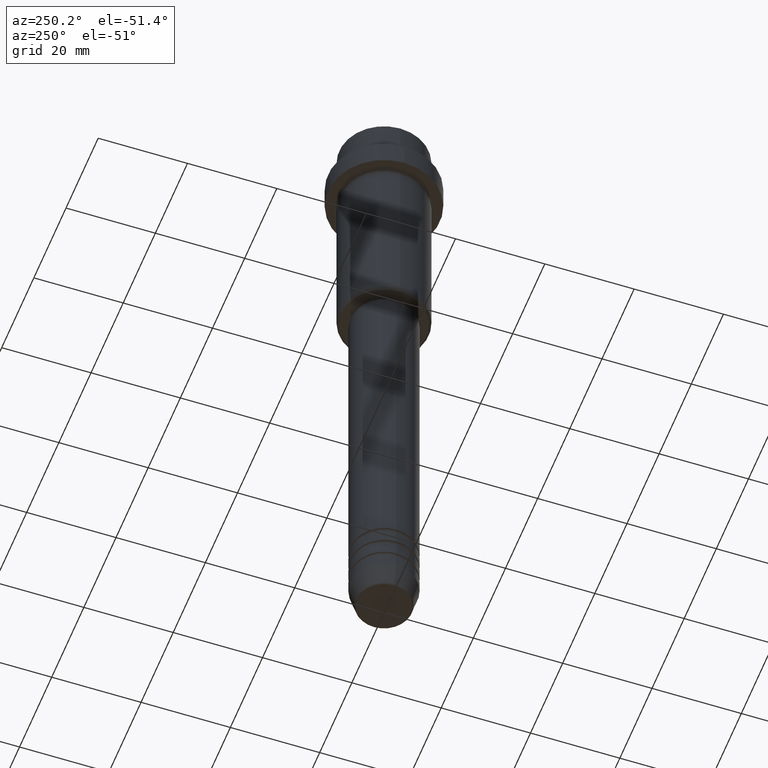
[diagram: clean part render]
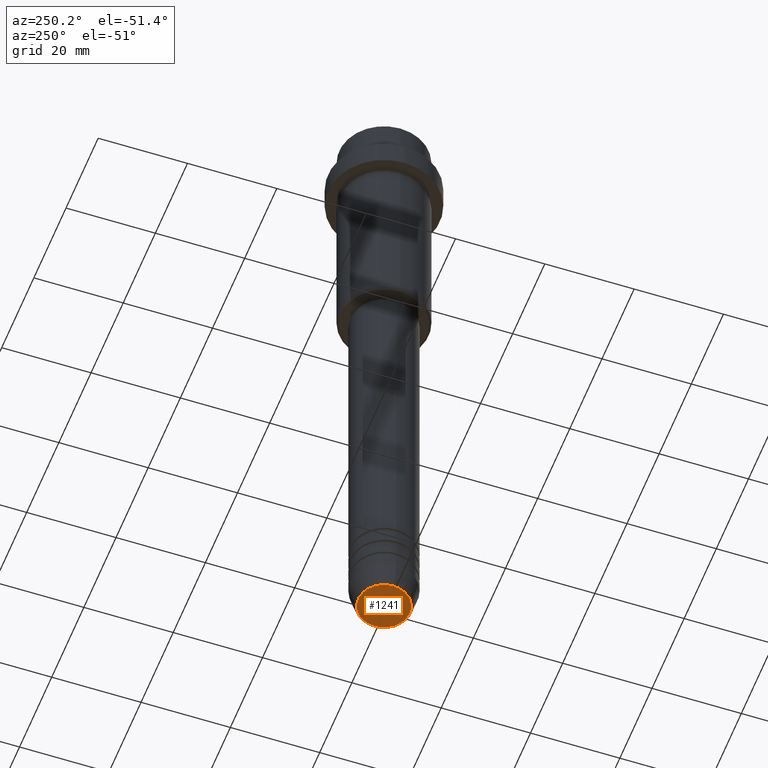
[diagram: same view with one face highlighted and labeled with its STEP entity id]
A machine part, auxiliary view. The second image highlights one B-rep face of the part: STEP entity #1241.
In plain terms, the highlighted planar face has unit normal (0, -0, 1).
Its self-contained STEP definition (entity closure, byte-faithful):
#65 = CARTESIAN_POINT ( 'NONE',  ( -5.776590543854905668, 7.370012612361443628E-16, -149.9999999999999716 ) ) ;
#86 = AXIS2_PLACEMENT_3D ( 'NONE', #1328, #348, #783 ) ;
#337 = DIRECTION ( 'NONE',  ( 1.000000000000000000, 0.000000000000000000, 0.000000000000000000 ) ) ;
#348 = DIRECTION ( 'NONE',  ( 0.000000000000000000, -0.000000000000000000, 1.000000000000000000 ) ) ;
#385 = EDGE_CURVE ( 'NONE', #877, #998, #628, .T. ) ;
#428 = FACE_OUTER_BOUND ( 'NONE', #522, .T. ) ;
#473 = EDGE_CURVE ( 'NONE', #998, #877, #974, .T. ) ;
#489 = CARTESIAN_POINT ( 'NONE',  ( 0.000000000000000000, 0.000000000000000000, -149.9999999999999716 ) ) ;
#522 = EDGE_LOOP ( 'NONE', ( #1305, #1259 ) ) ;
#549 = PLANE ( 'NONE',  #86 ) ;
#579 = DIRECTION ( 'NONE',  ( 0.000000000000000000, 0.000000000000000000, -1.000000000000000000 ) ) ;
#602 = AXIS2_PLACEMENT_3D ( 'NONE', #681, #579, #337 ) ;
#628 = CIRCLE ( 'NONE', #602, 5.776590543854905668 ) ;
#630 = AXIS2_PLACEMENT_3D ( 'NONE', #489, #1146, #931 ) ;
#681 = CARTESIAN_POINT ( 'NONE',  ( 0.000000000000000000, 0.000000000000000000, -149.9999999999999716 ) ) ;
#742 = CARTESIAN_POINT ( 'NONE',  ( 5.776590543854905668, 0.000000000000000000, -149.9999999999999716 ) ) ;
#783 = DIRECTION ( 'NONE',  ( 1.000000000000000000, 0.000000000000000000, 0.000000000000000000 ) ) ;
#877 = VERTEX_POINT ( 'NONE', #65 ) ;
#931 = DIRECTION ( 'NONE',  ( 1.000000000000000000, 0.000000000000000000, 0.000000000000000000 ) ) ;
#974 = CIRCLE ( 'NONE', #630, 5.776590543854905668 ) ;
#998 = VERTEX_POINT ( 'NONE', #742 ) ;
#1146 = DIRECTION ( 'NONE',  ( 0.000000000000000000, 0.000000000000000000, -1.000000000000000000 ) ) ;
#1241 = ADVANCED_FACE ( 'NONE', ( #428 ), #549, .F. ) ;
#1259 = ORIENTED_EDGE ( 'NONE', *, *, #385, .T. ) ;
#1305 = ORIENTED_EDGE ( 'NONE', *, *, #473, .T. ) ;
#1328 = CARTESIAN_POINT ( 'NONE',  ( 0.000000000000000000, 0.000000000000000000, -149.9999999999999716 ) ) ;